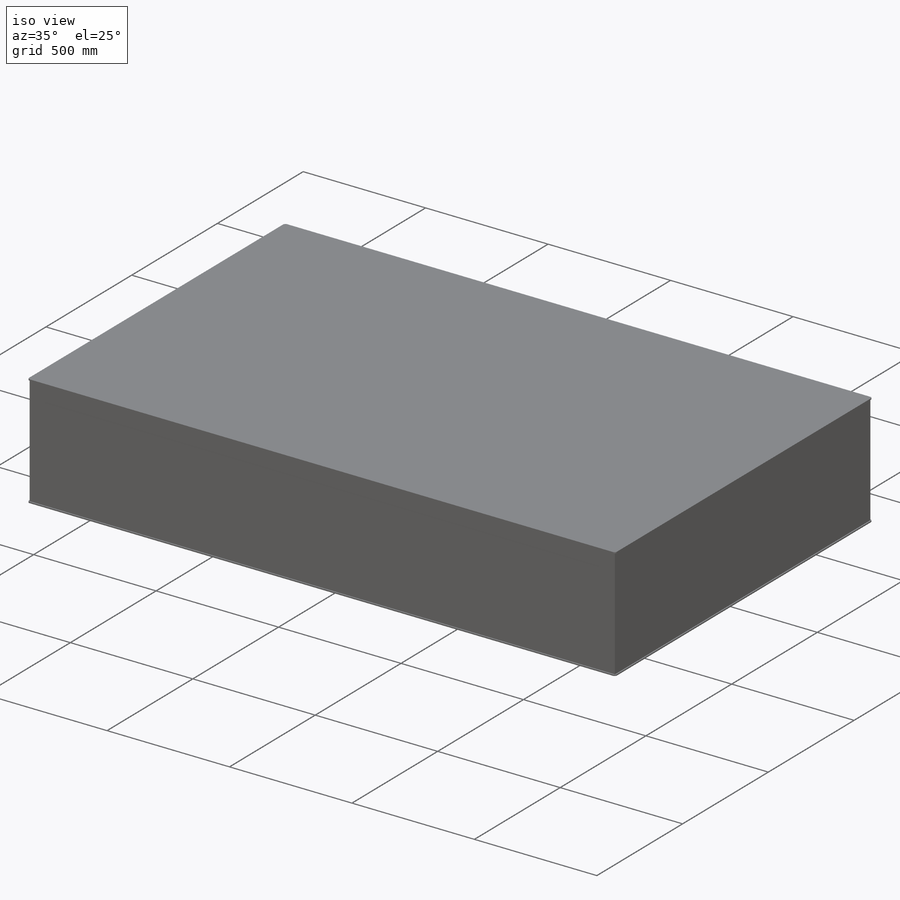
[diagram: iso view]
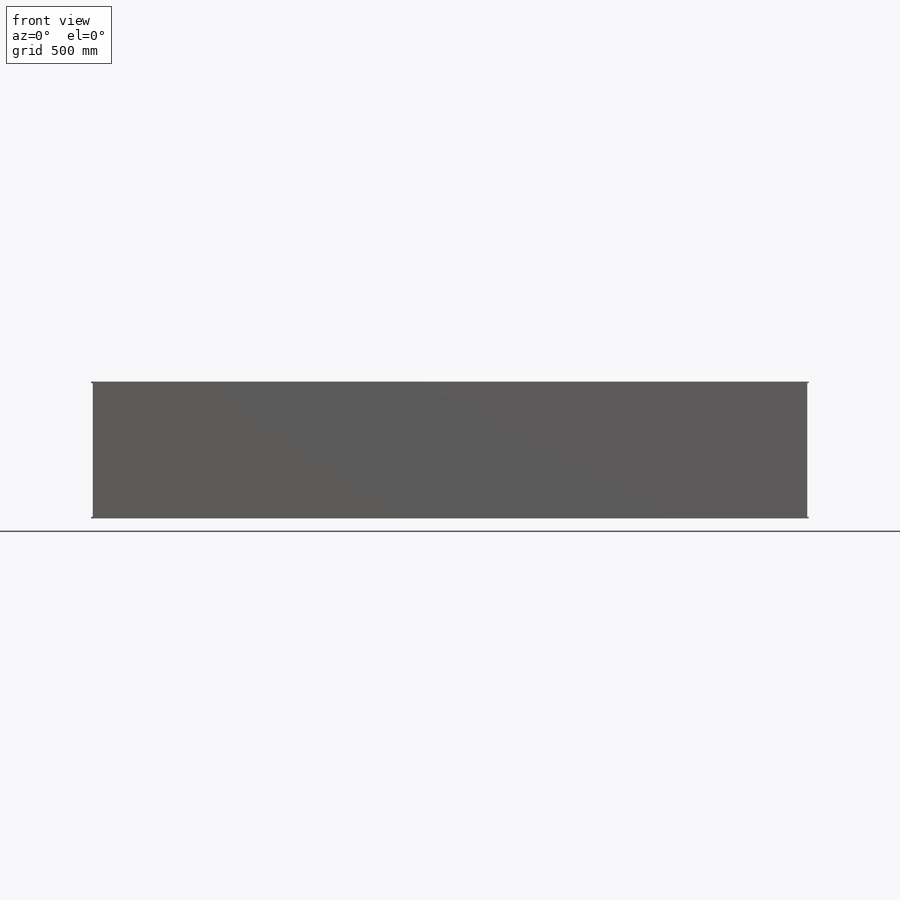
[diagram: front view]
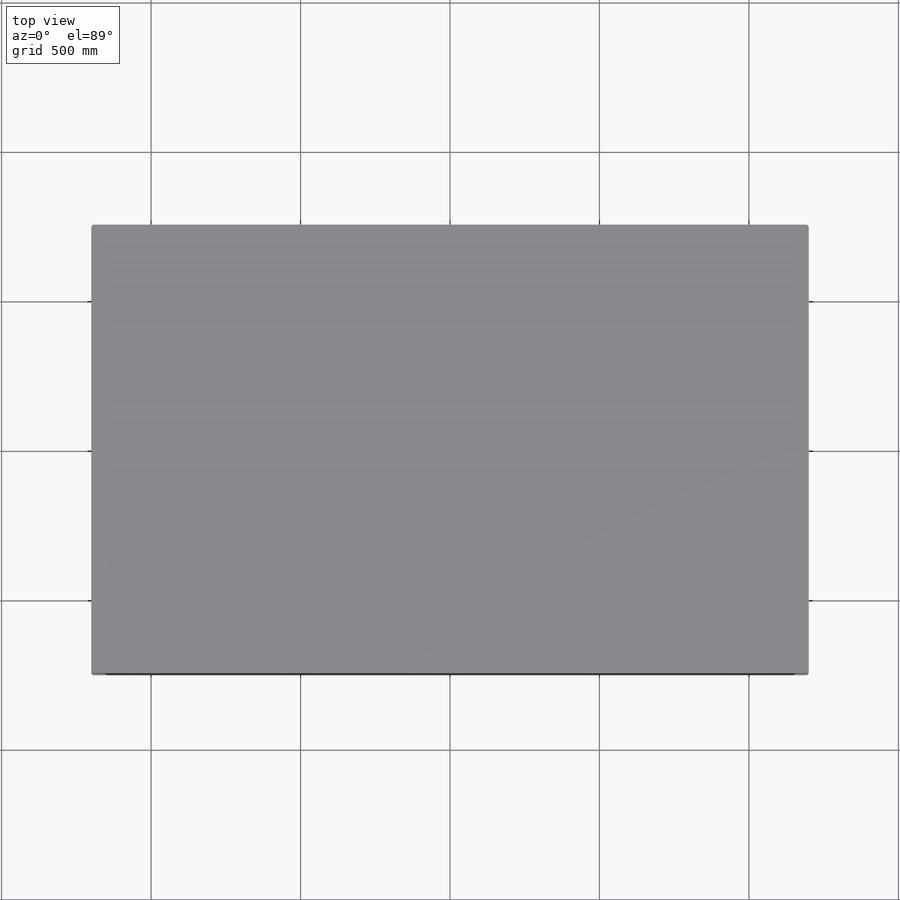
[diagram: top view]
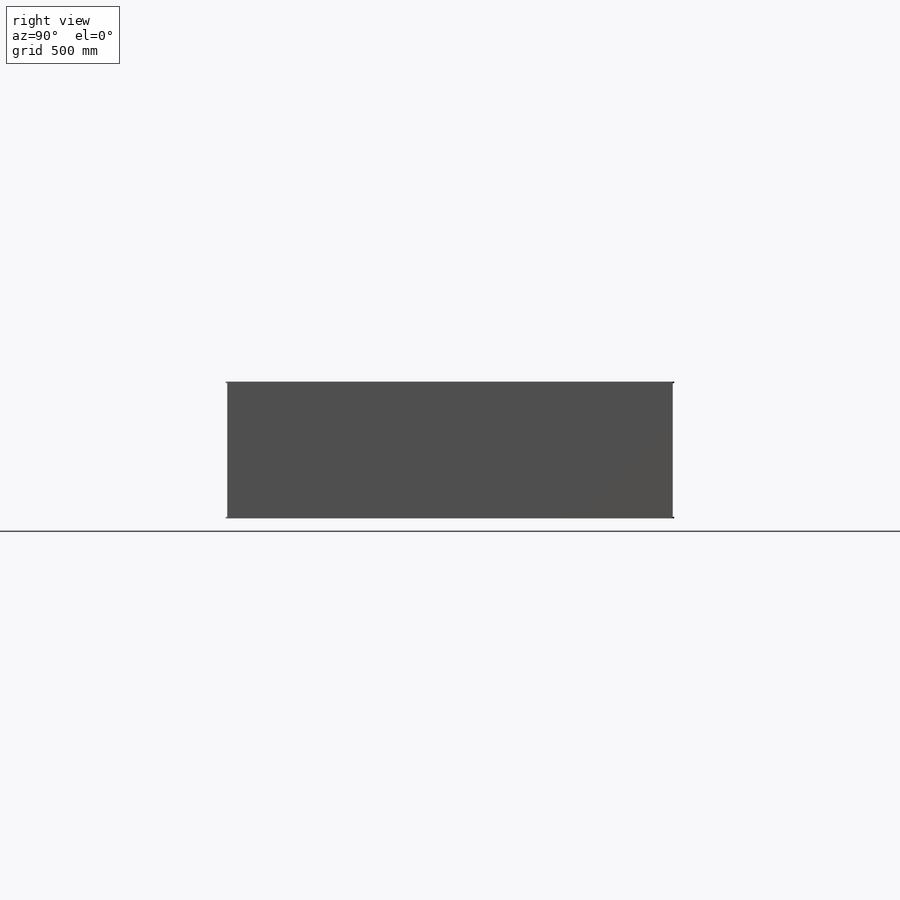
[diagram: right view]
SOLIDWORKS PART (.sldprt)
format: sldprt  version: not decoded by parser v0  size: 590,336 bytes
history: native  units: mm
features: sketch x8, pattern_linear x4, extrude x3, hole x2, mirror x2, material x1, thread x1 (+12 scaffold rows collapsed)
feature tree (33):
  scaffold x12  (default folders/planes/origin — collapsed)
  material  "Material <not specified>"
  sketch  "Sketch1"  dims[D1=2438.4mm D2=2400.0mm D3=1500.0mm]
  extrude  "Boss-Extrude2"  Depth=4.8mm
  sketch  "Sketch4"  dims[c1.D3=9.652mm c1.D1=2390.0mm c1.D2=1490.0mm c2.D3=9.652mm c3.D3=9.652mm c4.D3=90.0deg c5.D3=9.652mm c6.D3=45.0deg c7.D3=5.08mm c7.D4=5.08mm]
  extrude  "Boss-Extrude3"  Depth=447.4mm
  sketch  "Sketch5"  dims[c1.D1=9.652mm c1.D2=9.652mm c1.D3=9.652mm c1.D4=9.652mm c1.D7=9.652mm c2.D1=1219.2mm c2.D5=1500.0mm c2.D6=2400.0mm c2.D7=1199.896mm]
  extrude  "Boss-Extrude4"  Depth=4.8mm
  hole  "M6x1.0 Tapped Hole1"  [1 undecoded]
  sketch  "Sketch7"  dims[D1=12.5mm D2=12.5mm]
  thread  "M6-1.0 Thread - Top Surface"  Diameter=4.8mm  [1 undecoded]
  sketch  "Sketch6"  dims[hole-wizard template sketch: 39 standard entries collapsed; hole parameters kept: c13.Tap Drill Dia.=5.0mm c13.Tap Drill Depth=4.8mm c13.Near C'Sink Dia.=6.05mm c13.D4=~33.297463mm c13.Near C'Sink Angle=135.0deg c14.D5=~14.816244mm c14.Drill Angle=118.0deg]
  pattern_linear  "LPattern2"  Count1=12 Count2=12 Spacing1=25mm Spacing2=25mm
  sketch  "Sketch10"  dims[c1.D1=~46.463777mm c1.D3=203.2mm c2.D1=60.0deg c3.D1=152.4mm c3.D2=559.0mm c3.D3=152.4mm c3.D4=50.8mm c4.D4=120.0deg c4.D5=101.6mm c5.D5=120.0deg]
  hole  "1/4-20 Tapped Hole5"  Diameter=5.1054mm Depth=4.8mm
  sketch  "Sketch20"
  sketch  "Sketch19"  dims[hole-wizard template sketch: 47 standard entries collapsed; hole parameters kept: c15.Tap Drill Depth=4.8mm c15.D3=~14.816244mm c15.Drill Angle=118.0deg]
  pattern_linear  "Hole Thread1"  Spacing1=0mm Spacing2=15.1054mm  [1 undecoded]
  pattern_linear  "Hole Thread2"  Spacing1=0mm Spacing2=15.1054mm  [1 undecoded]
  pattern_linear  "Hole Thread3"  Spacing1=0mm Spacing2=15.1054mm  [1 undecoded]
  mirror  "Mirror1"
  mirror  "Mirror2"
decode coverage: 16 of 20 modeling features carry decoded parameters
note: ~ marks probable driven/reference dimensions
note: 5 parameter values undecoded
note: suppression state not decoded; provenance and decode notes live in map.json
